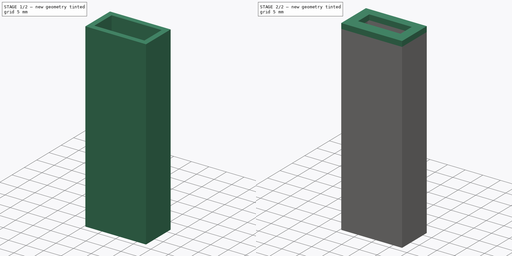
[diagram: build sequence overview — one tinted view per stage of 2, left to right]
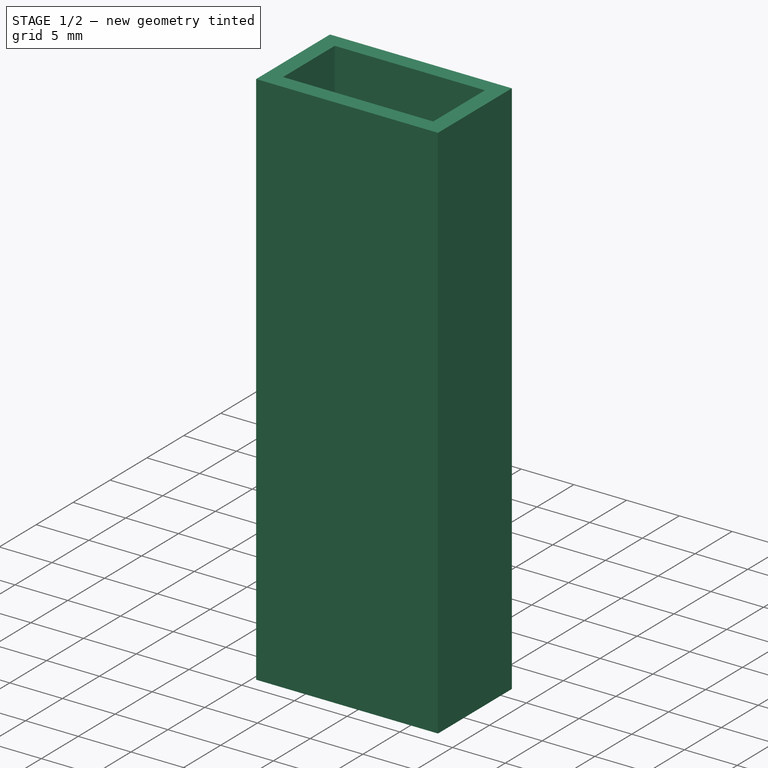
[diagram: stage 1 of 2 — iso view after this stage's code; geometry added in this stage tinted green]
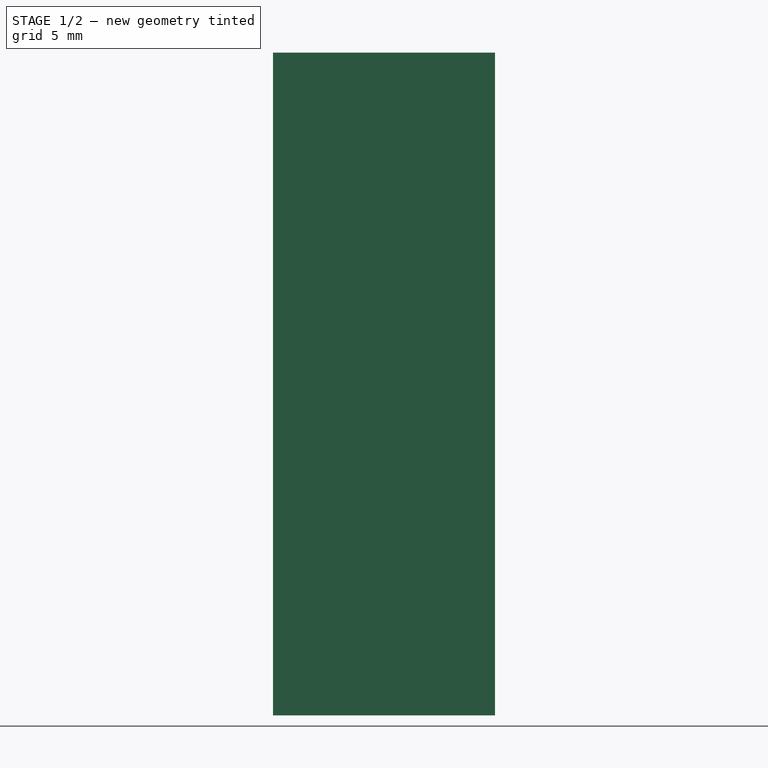
[diagram: stage 1 of 2 — front view after this stage's code; geometry added in this stage tinted green]
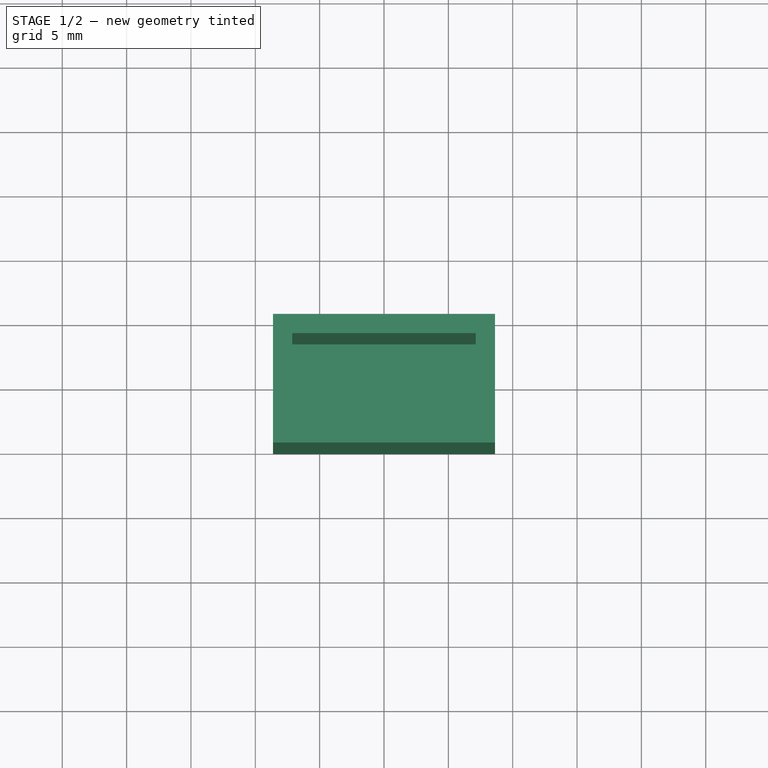
[diagram: stage 1 of 2 — top view after this stage's code; geometry added in this stage tinted green]
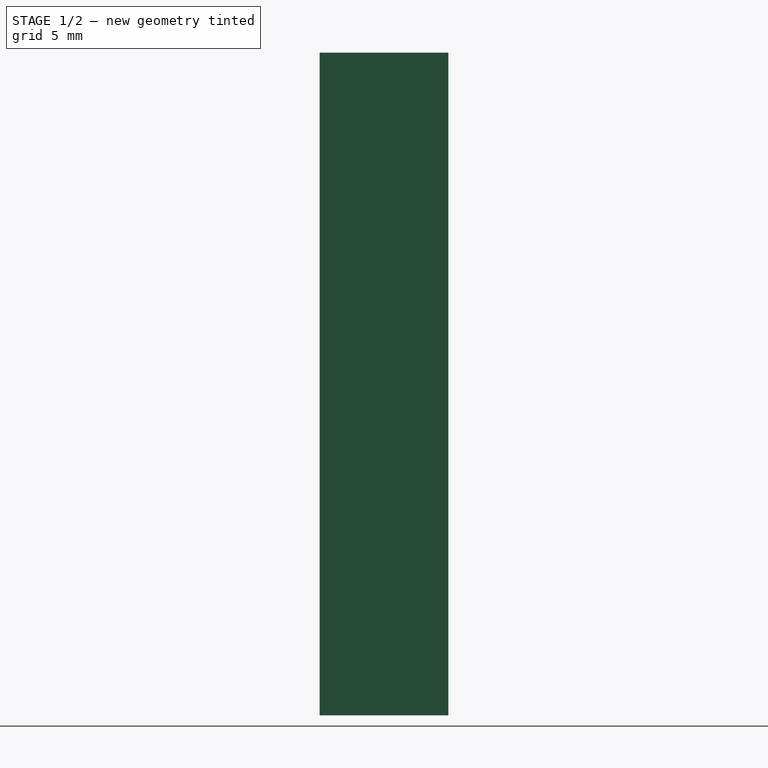
[diagram: stage 1 of 2 — right view after this stage's code; geometry added in this stage tinted green]
FCSTD DOCUMENT  (FreeCAD 0.17R10150 (Git))
Label: case
License: All rights reserved
LicenseURL: http://en.wikipedia.org/wiki/All_rights_reserved
objects: Sketcher::SketchObject×4, PartDesign::Pad×3, PartDesign::Pocket×1, PartDesign::Body×1, App::Part×1
note: 13 computed .brp shape members not serialized (recipe doc carries the construction recipe); baked Part::Feature solids carry a one-line shape summary decoded from their .brp

FEATURE [Sketcher::SketchObject] Sketch
  MapMode = 5
  Support = -> [XY_Plane001]
  sketch-geometry (4):
    g0: LineSegment StartX=-8.625 StartY=5 StartZ=0 EndX=8.625 EndY=5 EndZ=0
    g1: LineSegment StartX=8.625 StartY=5 StartZ=0 EndX=8.625 EndY=-5 EndZ=0
    g2: LineSegment StartX=8.625 StartY=-5 StartZ=0 EndX=-8.625 EndY=-5 EndZ=0
    g3: LineSegment StartX=-8.625 StartY=-5 StartZ=0 EndX=-8.625 EndY=5 EndZ=0
  constraints (12):
    c: Coincident(g0,g1)
    c: Coincident(g1,g2)
    c: Coincident(g2,g3)
    c: Coincident(g3,g0)
    c: Horizontal(g0)
    c: Horizontal(g2)
    c: Vertical(g1)
    c: Vertical(g3)
    c: Symmetric(g0,g0,g-2)
    c: Symmetric(g0,g1,g-1)
    c: DistanceX(g0,g0) = 17.25
    c: DistanceY(g1,g1) = 10
FEATURE [PartDesign::Pad] Pad
  Length = 1.5
  Length2 = 100
  Profile = -> Sketch
  Type = 0
FEATURE [Sketcher::SketchObject] Sketch001
  ExternalGeometry = -> [Pad]
  MapMode = 5
  Placement = pos=(0,0,1.5) rot=(0,0,1;0rad)
  Support = -> [Pad]
  sketch-geometry (8):
    g0: LineSegment StartX=-8.625 StartY=5 StartZ=0 EndX=8.625 EndY=5 EndZ=0
    g1: LineSegment StartX=8.625 StartY=5 StartZ=0 EndX=8.625 EndY=-5 EndZ=0
    g2: LineSegment StartX=8.625 StartY=-5 StartZ=0 EndX=-8.625 EndY=-5 EndZ=0
    g3: LineSegment StartX=-8.625 StartY=-5 StartZ=0 EndX=-8.625 EndY=5 EndZ=0
    g4: LineSegment StartX=-7.125 StartY=3.5 StartZ=0 EndX=7.125 EndY=3.5 EndZ=0
    g5: LineSegment StartX=7.125 StartY=3.5 StartZ=0 EndX=7.125 EndY=-3.5 EndZ=0
    g6: LineSegment StartX=7.125 StartY=-3.5 StartZ=0 EndX=-7.125 EndY=-3.5 EndZ=0
    g7: LineSegment StartX=-7.125 StartY=-3.5 StartZ=0 EndX=-7.125 EndY=3.5 EndZ=0
  constraints (22):
    c: Coincident(g0,g1)
    c: Coincident(g1,g2)
    c: Coincident(g2,g3)
    c: Coincident(g3,g0)
    c: Horizontal(g0)
    c: Horizontal(g2)
    c: Vertical(g1)
    c: Vertical(g3)
    c: Coincident(g0,g-3)
    c: Coincident(g1,g-4)
    c: Coincident(g4,g5)
    c: Coincident(g5,g6)
    c: Coincident(g6,g7)
    c: Coincident(g7,g4)
    c: Horizontal(g4)
    c: Horizontal(g6)
    c: Vertical(g5)
    c: Vertical(g7)
    c: DistanceX(g0,g4) = 1.5
    c: DistanceY(g4,g0) = 1.5
    c: DistanceX(g5,g1) = 1.5
    c: DistanceY(g1,g5) = 1.5
FEATURE [PartDesign::Pad] Pad001
  BaseFeature = -> Pad
  Length = 50
  Length2 = 100
  Profile = -> Sketch001
  Type = 0
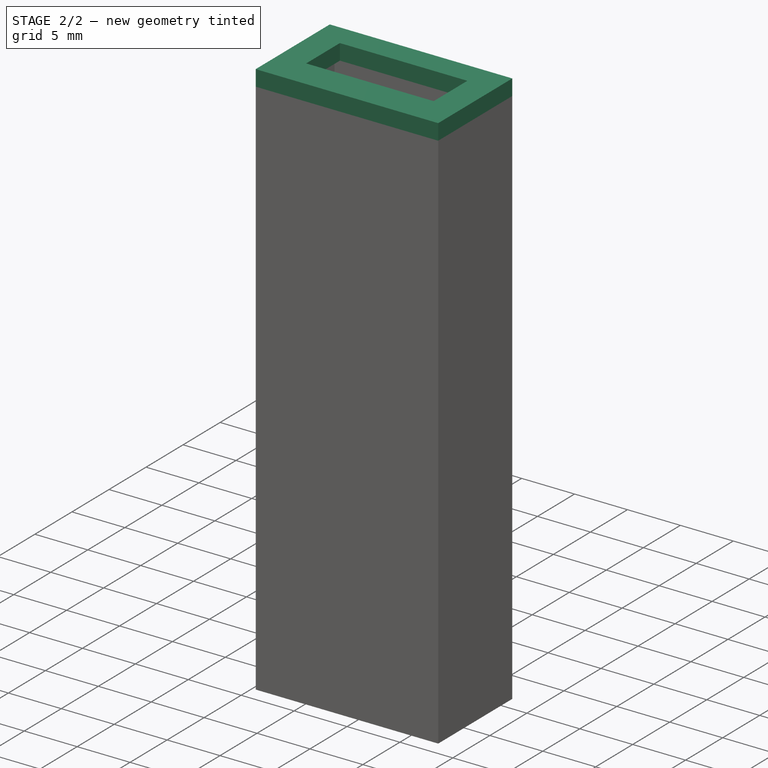
[diagram: stage 2 of 2 — iso view after this stage's code; geometry added in this stage tinted green]
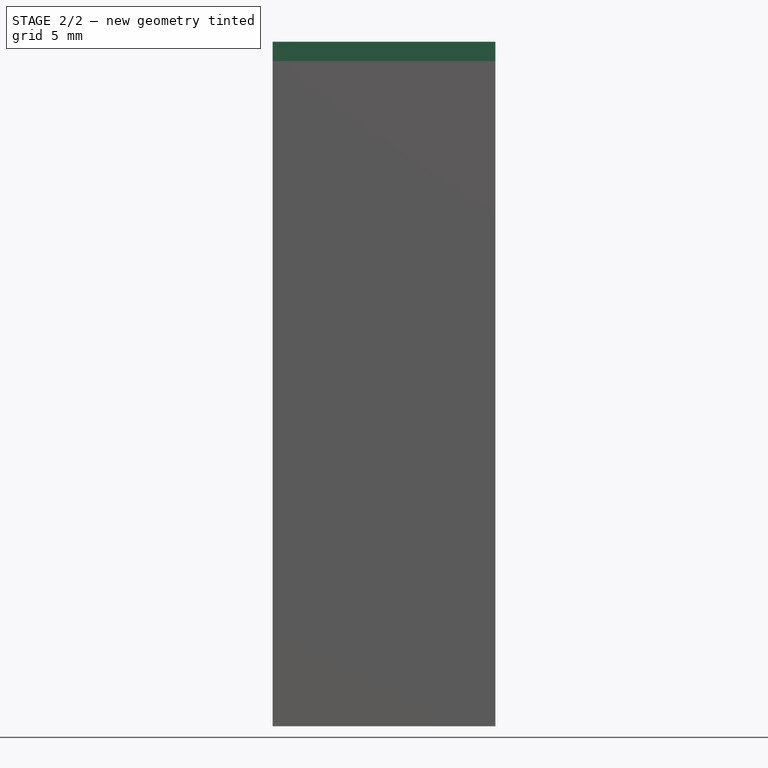
[diagram: stage 2 of 2 — front view after this stage's code; geometry added in this stage tinted green]
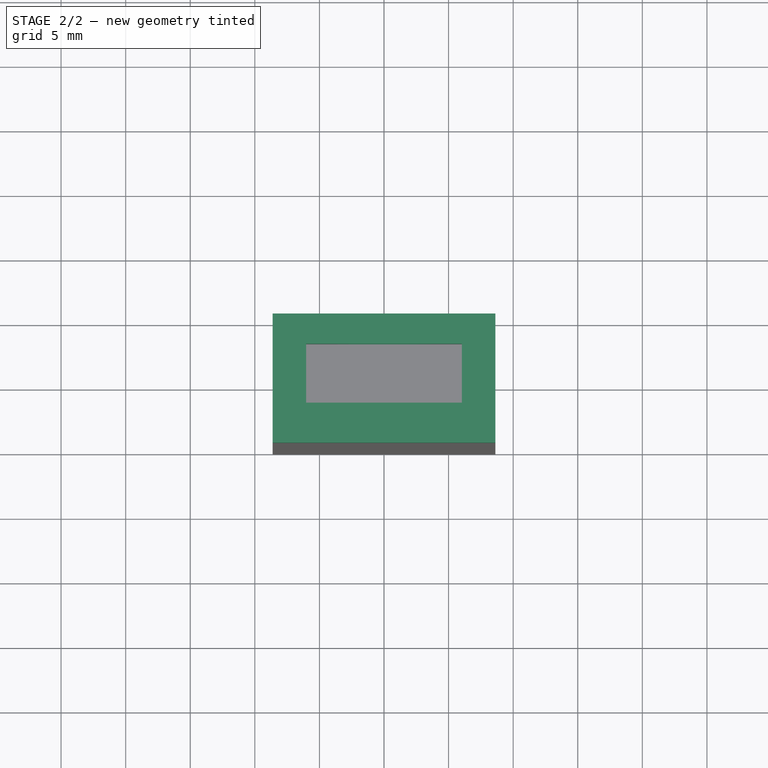
[diagram: stage 2 of 2 — top view after this stage's code; geometry added in this stage tinted green]
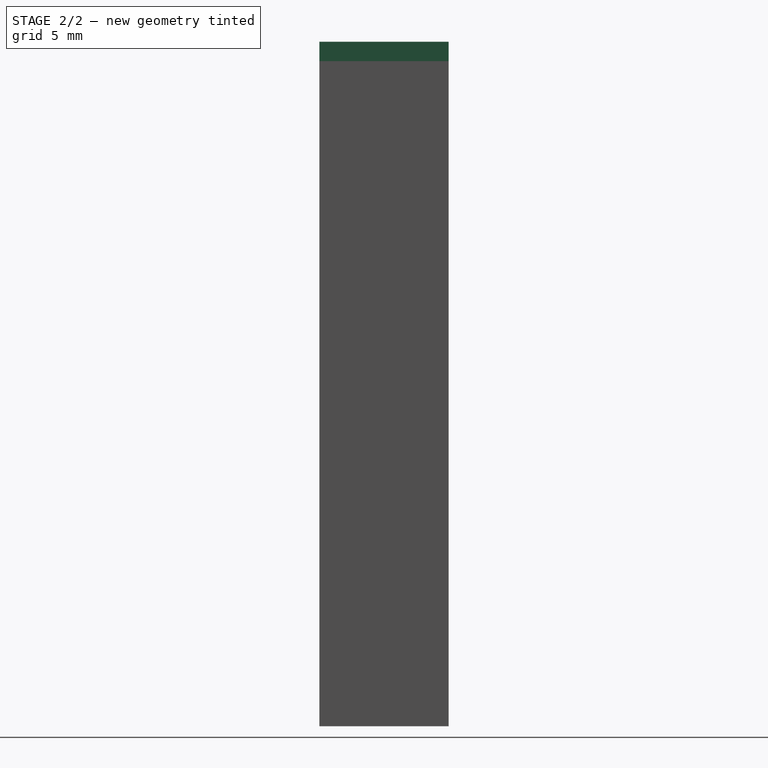
[diagram: stage 2 of 2 — right view after this stage's code; geometry added in this stage tinted green]
FEATURE [Sketcher::SketchObject] Sketch002
  ExternalGeometry = -> [Pad001]
  MapMode = 5
  Placement = pos=(0,5,0) rot=(0,0.707107,0.707107;3.14159rad)
  Support = -> [Pad001]
  sketch-geometry (1):
    g0: Circle CenterX=0 CenterY=7.5 CenterZ=0 NormalX=0 NormalY=0 NormalZ=1 Radius=6.1
  constraints (3):
    c: PointOnObject(g0,g-2)
    c: Radius(g0) = 6.1
    c: Distance(g0,g-3) = 6
FEATURE [PartDesign::Pocket] Pocket
  BaseFeature = -> Pad001
  Length = 5
  Profile = -> Sketch002
  Type = 2
FEATURE [Sketcher::SketchObject] Sketch003
  ExternalGeometry = -> [Pocket]
  MapMode = 5
  Placement = pos=(0,0,51.5) rot=(0,0,1;0rad)
  Support = -> [Pocket]
  sketch-geometry (8):
    g0: LineSegment StartX=-8.625 StartY=5 StartZ=0 EndX=8.625 EndY=5 EndZ=0
    g1: LineSegment StartX=8.625 StartY=5 StartZ=0 EndX=8.625 EndY=-5 EndZ=0
    g2: LineSegment StartX=8.625 StartY=-5 StartZ=0 EndX=-8.625 EndY=-5 EndZ=0
    g3: LineSegment StartX=-8.625 StartY=-5 StartZ=0 EndX=-8.625 EndY=5 EndZ=0
    g4: LineSegment StartX=-6.025 StartY=2.65 StartZ=0 EndX=6.025 EndY=2.65 EndZ=0
    g5: LineSegment StartX=6.025 StartY=2.65 StartZ=0 EndX=6.025 EndY=-1.9 EndZ=0
    g6: LineSegment StartX=6.025 StartY=-1.9 StartZ=0 EndX=-6.025 EndY=-1.9 EndZ=0
    g7: LineSegment StartX=-6.025 StartY=-1.9 StartZ=0 EndX=-6.025 EndY=2.65 EndZ=0
  constraints (22):
    c: Coincident(g0,g1)
    c: Coincident(g1,g2)
    c: Coincident(g2,g3)
    c: Coincident(g3,g0)
    c: Horizontal(g0)
    c: Horizontal(g2)
    c: Vertical(g1)
    c: Vertical(g3)
    c: Coincident(g0,g-3)
    c: Coincident(g1,g-4)
    c: Coincident(g4,g5)
    c: Coincident(g5,g6)
    c: Coincident(g6,g7)
    c: Coincident(g7,g4)
    c: Horizontal(g4)
    c: Horizontal(g6)
    c: Vertical(g5)
    c: Vertical(g7)
    c: Symmetric(g4,g4,g-2)
    c: DistanceX(g4,g4) = 12.05
    c: DistanceY(g7,g7) = 4.55
    c: DistanceY(g-5,g6) = 1.6
FEATURE [PartDesign::Pad] Pad002
  BaseFeature = -> Pocket
  Length = 1.5
  Length2 = 100
  Profile = -> Sketch003
  Type = 0
FEATURE [PartDesign::Body] Body
  Group = -> [Sketch,Pad,Sketch001,Pad001,Sketch002,Pocket,Sketch003,Pad002]
  Origin = -> BodyOrigin
  Tip = -> Pad002
FEATURE [App::Part] Part
  Group = -> [Body]
  License = CC BY 3.0
  LicenseURL = http://creativecommons.org/licenses/by/3.0/
  Origin = -> PartOrigin
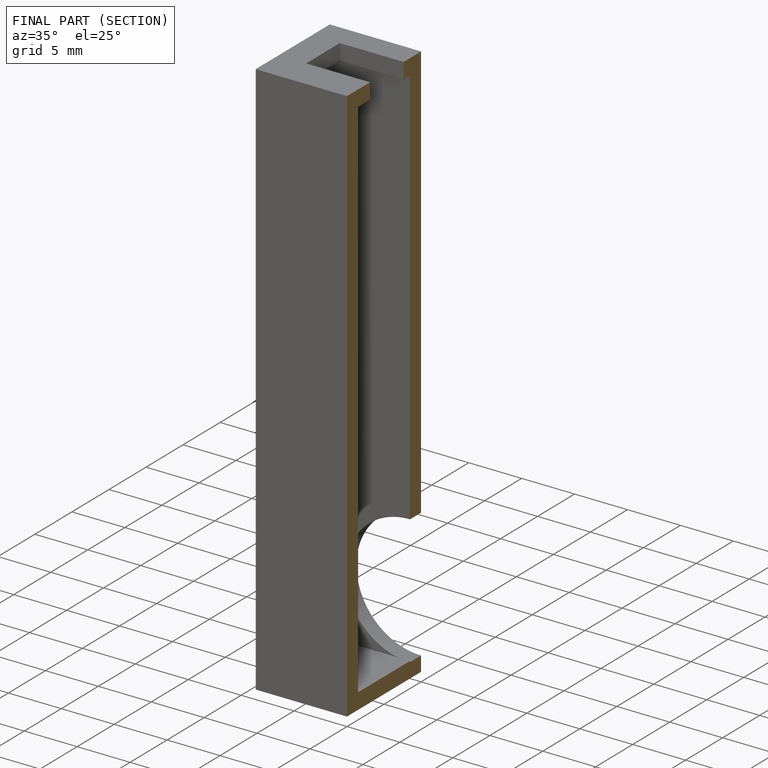
[diagram: finished part — half-section view (interior)]
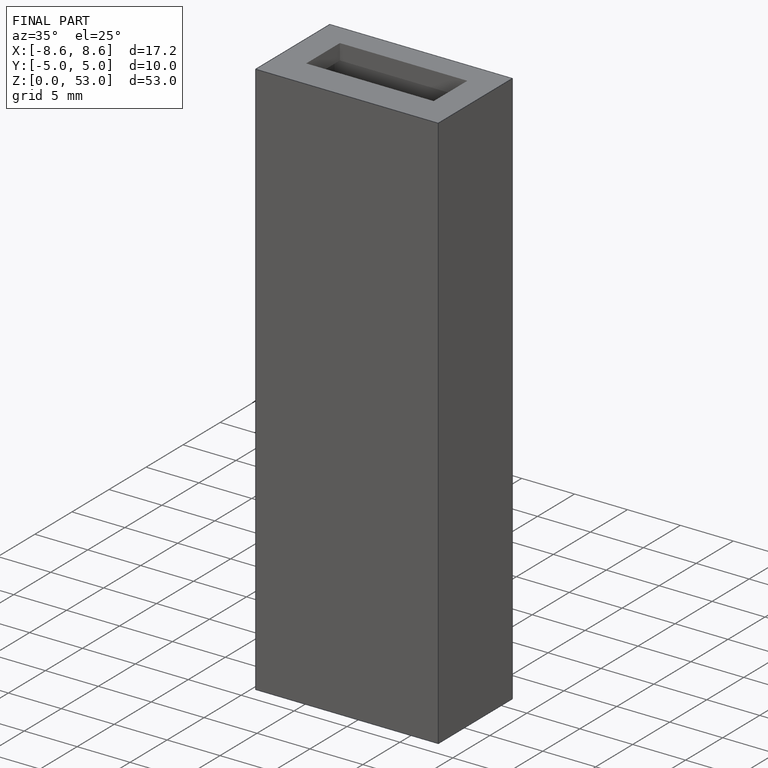
[diagram: finished part — iso view with bounding-box wireframe]
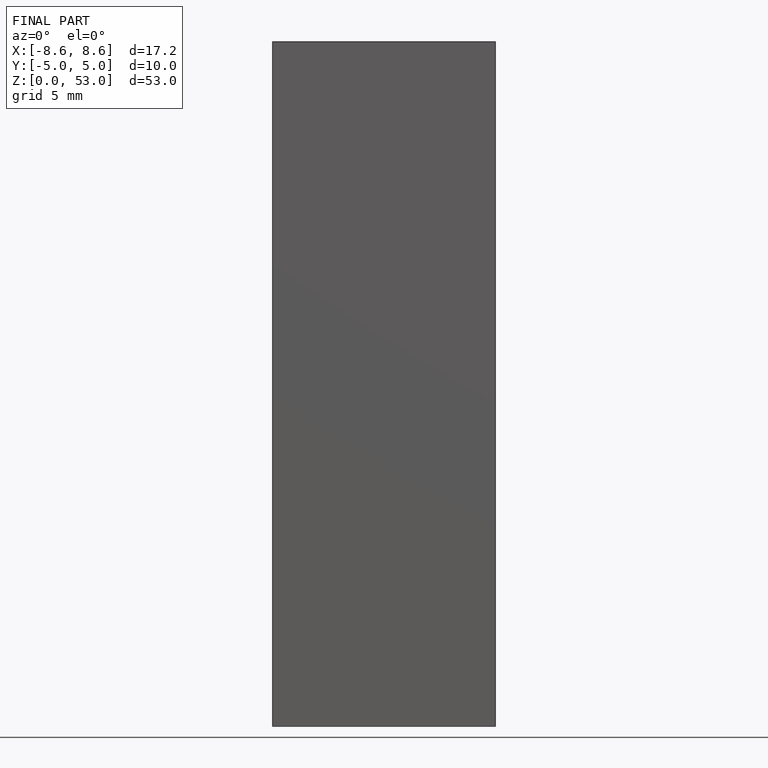
[diagram: finished part — front view with bounding-box wireframe]
